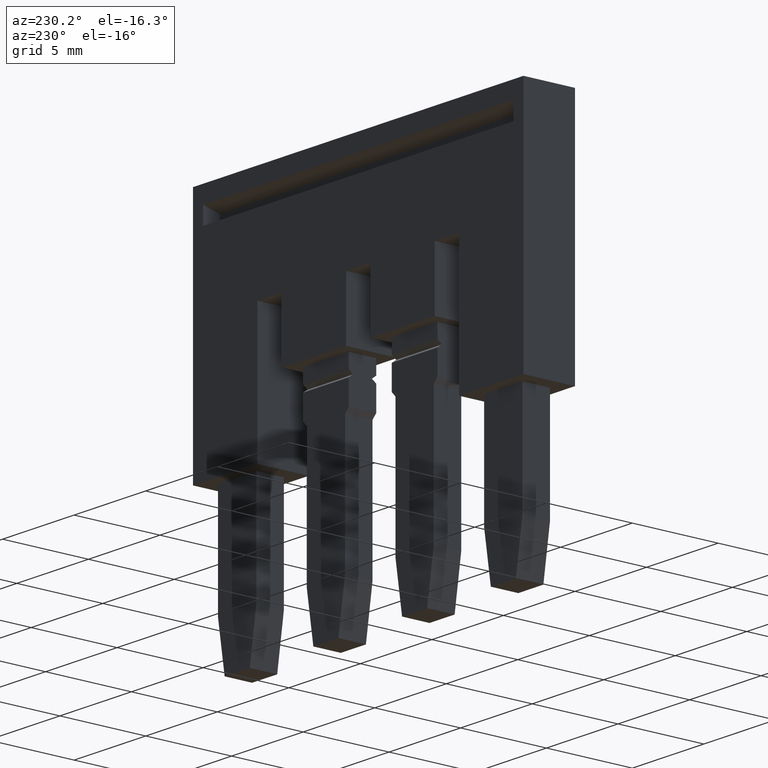
[diagram: clean part render]
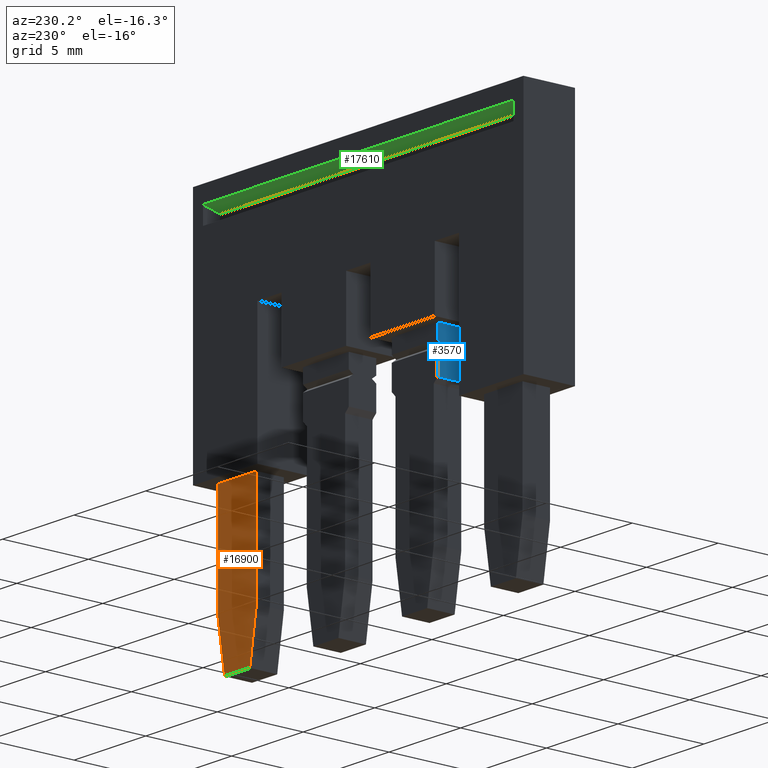
[diagram: same view with three faces highlighted in distinct colors, each labeled with its STEP entity id]
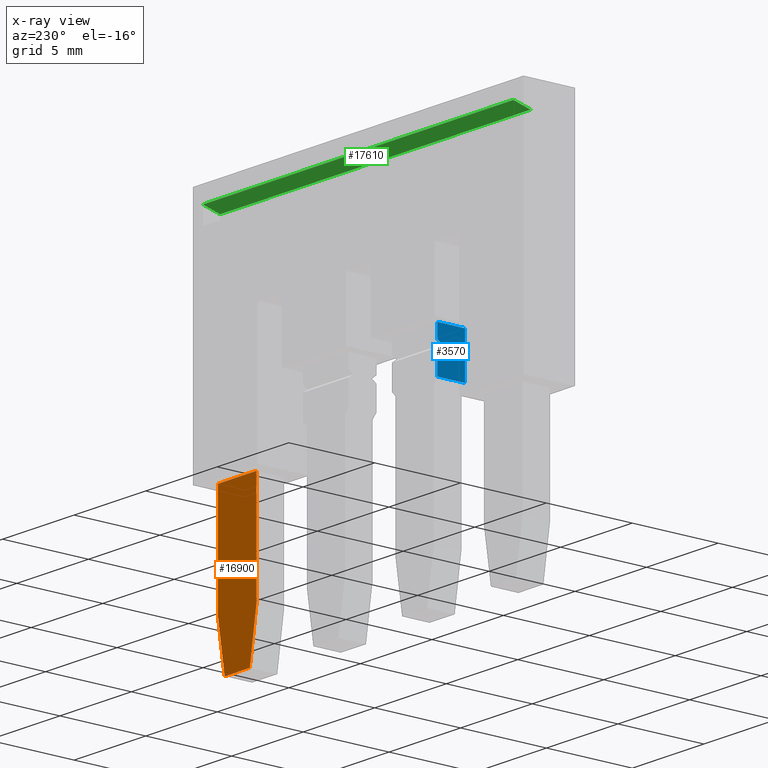
[diagram: x-ray of the same camera — body ghosted, the three highlighted faces saturated]
A machine part, auxiliary view with three faces highlighted in distinct colors.
The next image is the same camera in x-ray (body ghosted, the three faces saturated) — at least one of them is partly hidden behind the body in this view.
Their STEP definitions:

[orange] entity #16900 — the highlighted planar face has unit normal (-0, -1, 0).
#3700=CARTESIAN_POINT('',(3.3071672216951,-21.7849999999886,
38.5200000000026));
#3710=DIRECTION('',(1.22464679914735E-16,-1.,-6.12323399573677E-17));
#3720=VECTOR('',#3710,1.);
#3730=LINE('',#3700,#3720);
#3740=CARTESIAN_POINT('',(3.30716722169511,-23.0750000000004,
38.5199999990351));
#3750=VERTEX_POINT('',#3740);
#3760=CARTESIAN_POINT('',(3.30716722169511,-29.280742056351,
38.5199999999796));
#3770=VERTEX_POINT('',#3760);
#3780=EDGE_CURVE('',#3750,#3770,#3730,.T.);
#4310=CARTESIAN_POINT('',(3.30716722169511,-29.2807420565087,
41.1999999999964));
#4320=VERTEX_POINT('',#4310);
#4350=CARTESIAN_POINT('',(3.3071672216951,-12.605124,41.1999999999964));
#4360=DIRECTION('',(-1.22464679914735E-16,1.,-6.12323399573677E-17));
#4370=VECTOR('',#4360,1.);
#4380=LINE('',#4350,#4370);
#4390=CARTESIAN_POINT('',(3.30716722169511,-23.0750000000004,
41.1999999999964));
#4400=VERTEX_POINT('',#4390);
#4410=EDGE_CURVE('',#4320,#4400,#4380,.T.);
#9300=CARTESIAN_POINT('',(3.3071672216951,48.2714705882333,
225.745882352948));
#9310=DIRECTION('',(1.,1.22464679914735E-16,7.49879891330929E-33));
#9320=DIRECTION('',(1.22464679914735E-16,-1.,-6.12323399573677E-17));
#9330=AXIS2_PLACEMENT_3D('',#9300,#9310,#9320);
#9340=PLANE('',#9330);
#12220=CARTESIAN_POINT('',(3.30716722169511,-32.1500000022914,
38.9831890519623));
#12230=VERTEX_POINT('',#12220);
#12330=CARTESIAN_POINT('',(3.3071672216951,-14.7145836302073,
36.1685609730375));
#12340=DIRECTION('',(-1.16661517616358E-16,0.987219178105449,
-0.159368423411924));
#12350=VECTOR('',#12340,1.);
#12360=LINE('',#12330,#12350);
#12370=EDGE_CURVE('',#12230,#3770,#12360,.T.);
#13320=CARTESIAN_POINT('',(3.30716722169511,-23.0750000000004,47.024984)
);
#13330=DIRECTION('',(-7.49879891330929E-33,0.,1.));
#13340=VECTOR('',#13330,1.);
#13350=LINE('',#13320,#13340);
#13360=EDGE_CURVE('',#3750,#4400,#13350,.T.);
#16700=ORIENTED_EDGE('',*,*,#12370,.F.);
#16710=ORIENTED_EDGE('',*,*,#3780,.T.);
#16720=ORIENTED_EDGE('',*,*,#13360,.F.);
#16730=ORIENTED_EDGE('',*,*,#4410,.T.);
#16740=CARTESIAN_POINT('',(3.3071672216951,-12.605124,43.8919725811868))
;
#16750=DIRECTION('',(1.11022302462516E-16,-0.987219178105449,
-0.159368423411924));
#16760=VECTOR('',#16750,1.);
#16770=LINE('',#16740,#16760);
#16780=CARTESIAN_POINT('',(3.30716722169511,-32.1500000022916,
40.7368109480382));
#16790=VERTEX_POINT('',#16780);
#16800=EDGE_CURVE('',#4320,#16790,#16770,.T.);
#16810=ORIENTED_EDGE('',*,*,#16800,.F.);
#16820=CARTESIAN_POINT('',(3.30716722169511,-32.1500000022925,47.024984)
);
#16830=DIRECTION('',(2.52435489670724E-29,-1.44960956186225E-13,1.));
#16840=VECTOR('',#16830,1.);
#16850=LINE('',#16820,#16840);
#16860=EDGE_CURVE('',#12230,#16790,#16850,.T.);
#16870=ORIENTED_EDGE('',*,*,#16860,.T.);
#16880=EDGE_LOOP('',(#16870,#16810,#16730,#16720,#16710,#16700));
#16890=FACE_OUTER_BOUND('',#16880,.T.);
#16900=ADVANCED_FACE('',(#16890),#9340,.F.);

[blue] entity #3570 — the highlighted planar face has unit normal (-1, 0, -0).
#2700=CARTESIAN_POINT('',(4.9071672216951,-14.8749999999945,
53.8599999999993));
#2710=DIRECTION('',(-9.42132328788462E-30,-7.68697104791813E-14,1.));
#2720=DIRECTION('',(-1.22464679914735E-16,-1.,-7.68697104791813E-14));
#2730=AXIS2_PLACEMENT_3D('',#2700,#2710,#2720);
#2740=PLANE('',#2730);
#2750=CARTESIAN_POINT('',(4.10716722168536,-20.3701634808452,
53.8599999999989));
#2760=DIRECTION('',(0.809016994374947,0.587785252292473,
4.51583215266282E-14));
#2770=VECTOR('',#2760,1.);
#2780=LINE('',#2750,#2770);
#2790=CARTESIAN_POINT('',(4.65106309235881,-19.9749999999945,
53.8599999999989));
#2800=VERTEX_POINT('',#2790);
#2810=CARTESIAN_POINT('',(4.9071672216951,-19.7889294584339,
53.8599999999989));
#2820=VERTEX_POINT('',#2810);
#2830=EDGE_CURVE('',#2800,#2820,#2780,.T.);
#2840=ORIENTED_EDGE('',*,*,#2830,.T.);
#2850=CARTESIAN_POINT('',(4.10716722168536,-19.5798365191437,
53.8599999999989));
#2860=DIRECTION('',(0.809016994374947,-0.587785252292473,
-4.51583215266282E-14));
#2870=VECTOR('',#2860,1.);
#2880=LINE('',#2850,#2870);
#2890=CARTESIAN_POINT('',(4.9071672216951,-20.1610705415551,
53.8599999999989));
#2900=VERTEX_POINT('',#2890);
#2910=EDGE_CURVE('',#2800,#2900,#2880,.T.);
#2920=ORIENTED_EDGE('',*,*,#2910,.F.);
#2930=CARTESIAN_POINT('',(4.9071672216951,-14.7145836302073,
53.8599999999993));
#2940=DIRECTION('',(1.22464679914735E-16,1.,7.68697104791813E-14));
#2950=VECTOR('',#2940,1.);
#2960=LINE('',#2930,#2950);
#2970=CARTESIAN_POINT('',(4.9071672216951,-21.5249999999945,
53.8599999999988));
#2980=VERTEX_POINT('',#2970);
#2990=EDGE_CURVE('',#2980,#2900,#2960,.T.);
#3000=ORIENTED_EDGE('',*,*,#2990,.T.);
#3010=CARTESIAN_POINT('',(4.10716722170486,-21.5249999999943,
53.8599999999989));
#3020=DIRECTION('',(1.,-1.22464679914735E-16,2.13821176807375E-50));
#3030=VECTOR('',#3020,1.);
#3040=LINE('',#3010,#3030);
#3050=CARTESIAN_POINT('',(3.30716722169511,-21.5249999999945,
53.8599999999988));
#3060=VERTEX_POINT('',#3050);
#3070=EDGE_CURVE('',#3060,#2980,#3040,.T.);
#3080=ORIENTED_EDGE('',*,*,#3070,.T.);
#3090=CARTESIAN_POINT('',(3.3071672216951,-14.7145836302073,
53.8600000000042));
#3100=DIRECTION('',(1.2246467991474E-16,-1.,-5.98964100881763E-14));
#3110=VECTOR('',#3100,1.);
#3120=LINE('',#3090,#3110);
#3130=CARTESIAN_POINT('',(3.30716722169511,-20.1610705415498,
53.8599999999989));
#3140=VERTEX_POINT('',#3130);
#3150=EDGE_CURVE('',#3140,#3060,#3120,.T.);
#3160=ORIENTED_EDGE('',*,*,#3150,.T.);
#3170=CARTESIAN_POINT('',(4.10716722170487,-19.5798365191384,
53.8600000000039));
#3180=DIRECTION('',(0.809016994374947,0.587785252292473,
3.5150505024587E-14));
#3190=VECTOR('',#3180,1.);
#3200=LINE('',#3170,#3190);
#3210=CARTESIAN_POINT('',(3.5632713510314,-19.9749999999891,
53.8599999999989));
#3220=VERTEX_POINT('',#3210);
#3230=EDGE_CURVE('',#3140,#3220,#3200,.T.);
#3240=ORIENTED_EDGE('',*,*,#3230,.F.);
#3250=CARTESIAN_POINT('',(4.10716722170487,-20.3701634808399,
53.8600000000039));
#3260=DIRECTION('',(-0.809016994374947,0.587785252292473,
3.51821235854167E-14));
#3270=VECTOR('',#3260,1.);
#3280=LINE('',#3250,#3270);
#3290=CARTESIAN_POINT('',(3.3071672216951,-19.7889294584285,
53.8599999999989));
#3300=VERTEX_POINT('',#3290);
#3310=EDGE_CURVE('',#3220,#3300,#3280,.T.);
#3320=ORIENTED_EDGE('',*,*,#3310,.F.);
#3330=CARTESIAN_POINT('',(3.3071672216951,0.,53.8600000000004));
#3340=DIRECTION('',(1.22464679914735E-16,-1.,-7.68697104791813E-14));
#3350=VECTOR('',#3340,1.);
#3360=LINE('',#3330,#3350);
#3370=CARTESIAN_POINT('',(3.3071672216951,-18.9750000000004,
53.859999999999));
#3380=VERTEX_POINT('',#3370);
#3390=EDGE_CURVE('',#3380,#3300,#3360,.T.);
#3400=ORIENTED_EDGE('',*,*,#3390,.T.);
#3410=CARTESIAN_POINT('',(0.,-18.9750000000004,53.859999999999));
#3420=DIRECTION('',(1.,0.,9.42132328788462E-30));
#3430=VECTOR('',#3420,1.);
#3440=LINE('',#3410,#3430);
#3450=CARTESIAN_POINT('',(4.9071672216951,-18.9750000000004,
53.859999999999));
#3460=VERTEX_POINT('',#3450);
#3470=EDGE_CURVE('',#3380,#3460,#3440,.T.);
#3480=ORIENTED_EDGE('',*,*,#3470,.F.);
#3490=CARTESIAN_POINT('',(4.90716722169511,0.,53.8600000000004));
#3500=DIRECTION('',(1.22464679914735E-16,1.,7.68697104791813E-14));
#3510=VECTOR('',#3500,1.);
#3520=LINE('',#3490,#3510);
#3530=EDGE_CURVE('',#2820,#3460,#3520,.T.);
#3540=ORIENTED_EDGE('',*,*,#3530,.T.);
#3550=EDGE_LOOP('',(#3540,#3480,#3400,#3320,#3240,#3160,#3080,#3000,
#2920,#2840));
#3560=FACE_OUTER_BOUND('',#3550,.T.);
#3570=ADVANCED_FACE('',(#3560),#2740,.T.);

[green] entity #17610 — the highlighted planar face has unit normal (0, -0.2588, 0.9659).
#9010=CARTESIAN_POINT('',(2.60716722168536,-10.1410254037848,
38.3099999999988));
#9020=VERTEX_POINT('',#9010);
#9050=CARTESIAN_POINT('',(5.60716722168536,-10.9448729810782,
38.3099999999988));
#9060=DIRECTION('',(0.965925826289069,-0.258819045102519,
2.06535396885765E-50));
#9070=VECTOR('',#9060,1.);
#9080=LINE('',#9050,#9070);
#9090=CARTESIAN_POINT('',(3.60716722168535,-10.408974596216,
38.3099999999988));
#9100=VERTEX_POINT('',#9090);
#9110=EDGE_CURVE('',#9020,#9100,#9080,.T.);
#10970=CARTESIAN_POINT('',(3.60716722168535,-10.408974596216,
60.0099999999988));
#10980=VERTEX_POINT('',#10970);
#11010=CARTESIAN_POINT('',(5.60716722168536,-10.9448729810782,
60.0099999999988));
#11020=DIRECTION('',(-0.965925826289069,0.258819045102519,
-2.06535396885765E-50));
#11030=VECTOR('',#11020,1.);
#11040=LINE('',#11010,#11030);
#11050=CARTESIAN_POINT('',(2.60716722168536,-10.1410254037848,
60.0099999999988));
#11060=VERTEX_POINT('',#11050);
#11070=EDGE_CURVE('',#10980,#11060,#11040,.T.);
#16240=CARTESIAN_POINT('',(3.60716722168535,-10.408974596216,47.024984))
;
#16250=DIRECTION('',(-2.13821176807375E-50,0.,-1.));
#16260=VECTOR('',#16250,1.);
#16270=LINE('',#16240,#16260);
#16280=EDGE_CURVE('',#10980,#9100,#16270,.T.);
#17450=CARTESIAN_POINT('',(3.60716722168535,-10.408974596216,
13.1300023999988));
#17460=DIRECTION('',(0.258819045102519,0.965925826289069,
-5.53409928039818E-51));
#17470=DIRECTION('',(-0.965925826289069,0.258819045102519,
-2.06535396885765E-50));
#17480=AXIS2_PLACEMENT_3D('',#17450,#17460,#17470);
#17490=PLANE('',#17480);
#17500=ORIENTED_EDGE('',*,*,#11070,.T.);
#17510=ORIENTED_EDGE('',*,*,#16280,.F.);
#17520=ORIENTED_EDGE('',*,*,#9110,.T.);
#17530=CARTESIAN_POINT('',(2.60716722168536,-10.1410254037848,47.024984)
);
#17540=DIRECTION('',(-2.13821176807375E-50,0.,-1.));
#17550=VECTOR('',#17540,1.);
#17560=LINE('',#17530,#17550);
#17570=EDGE_CURVE('',#11060,#9020,#17560,.T.);
#17580=ORIENTED_EDGE('',*,*,#17570,.T.);
#17590=EDGE_LOOP('',(#17580,#17520,#17510,#17500));
#17600=FACE_OUTER_BOUND('',#17590,.T.);
#17610=ADVANCED_FACE('',(#17600),#17490,.F.);